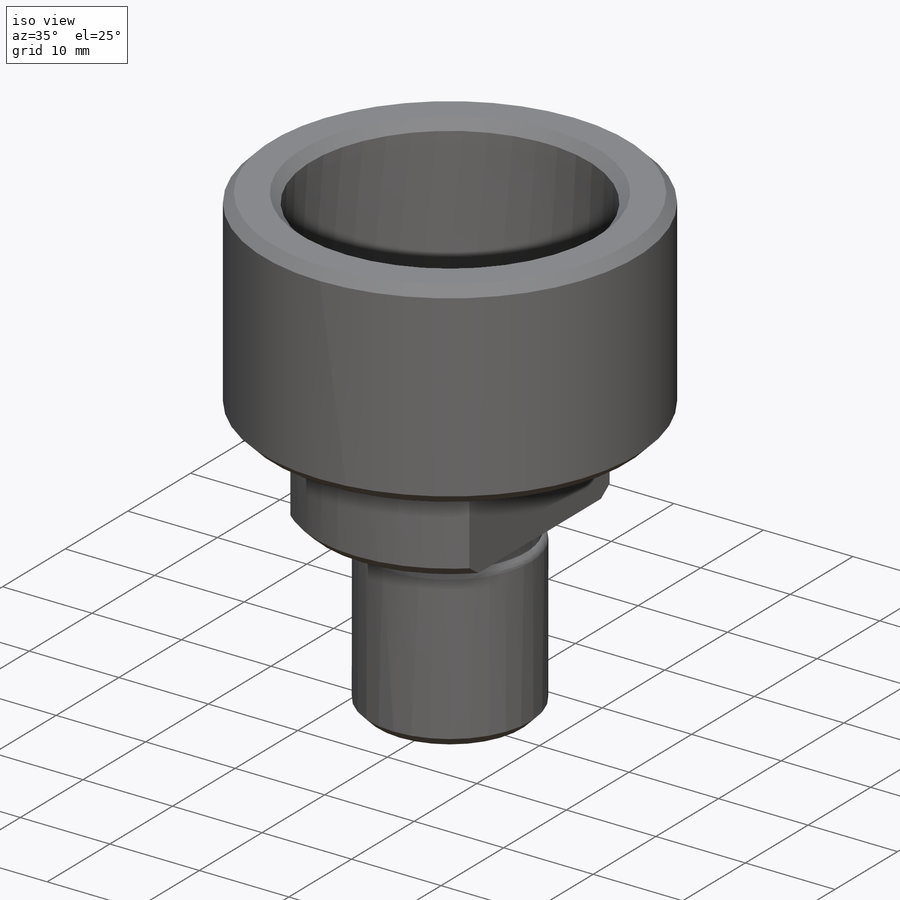
[diagram: iso view]
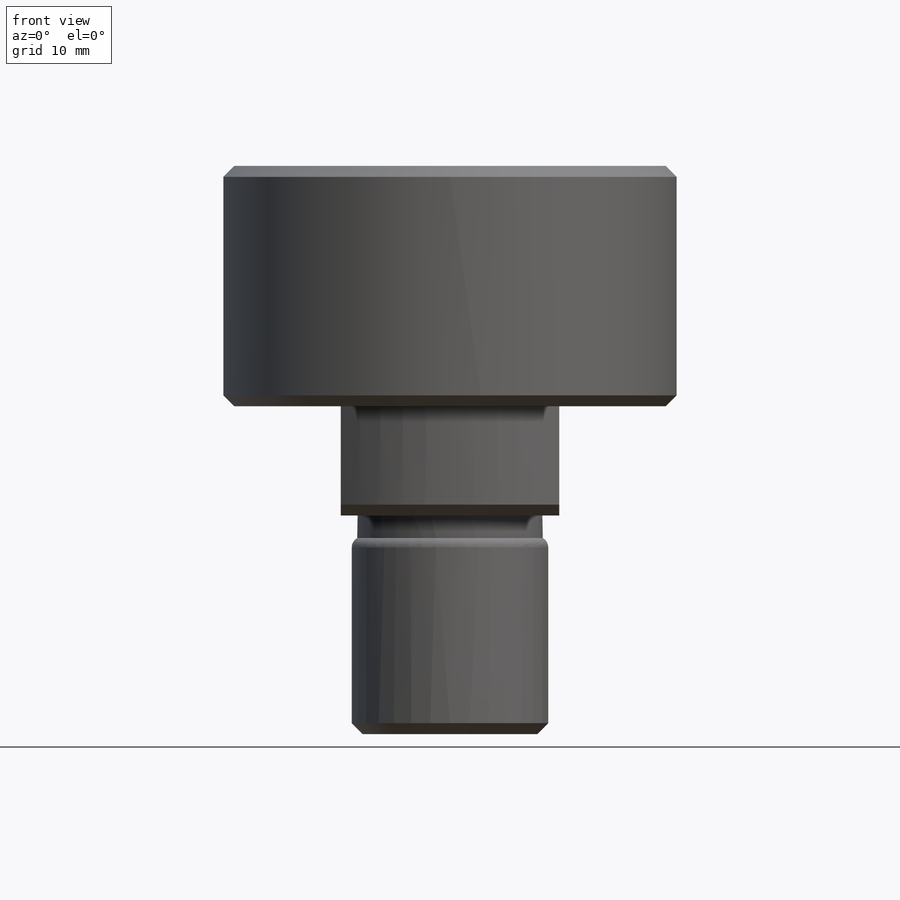
[diagram: front view]
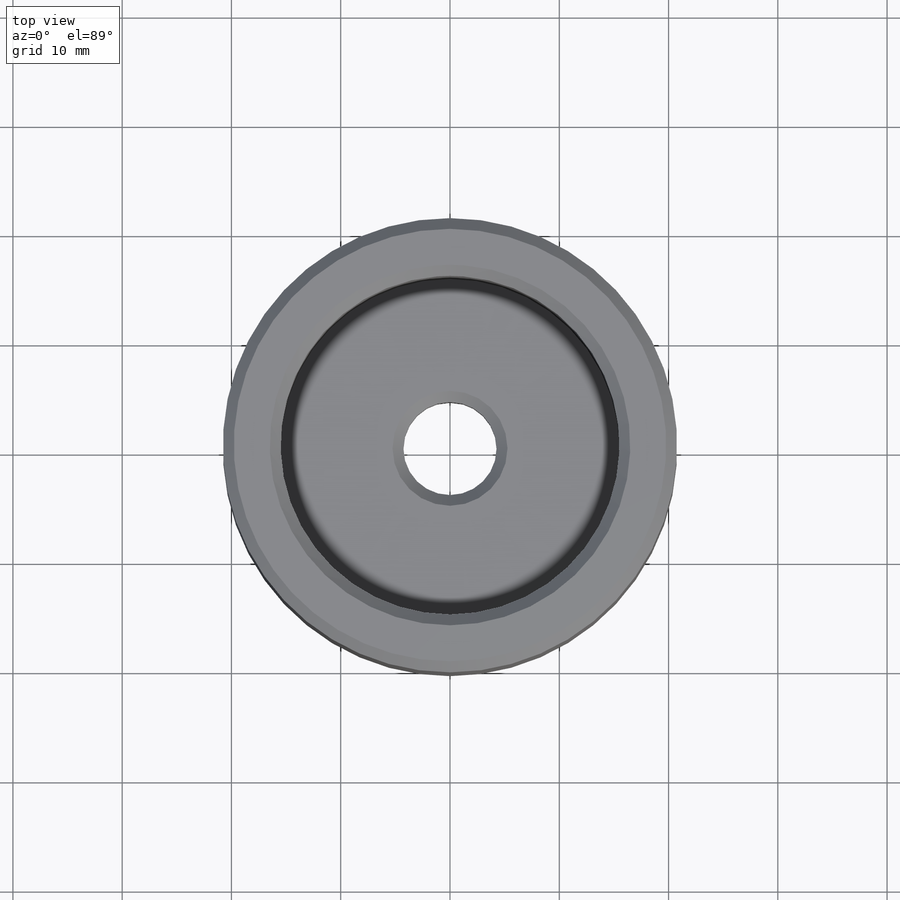
[diagram: top view]
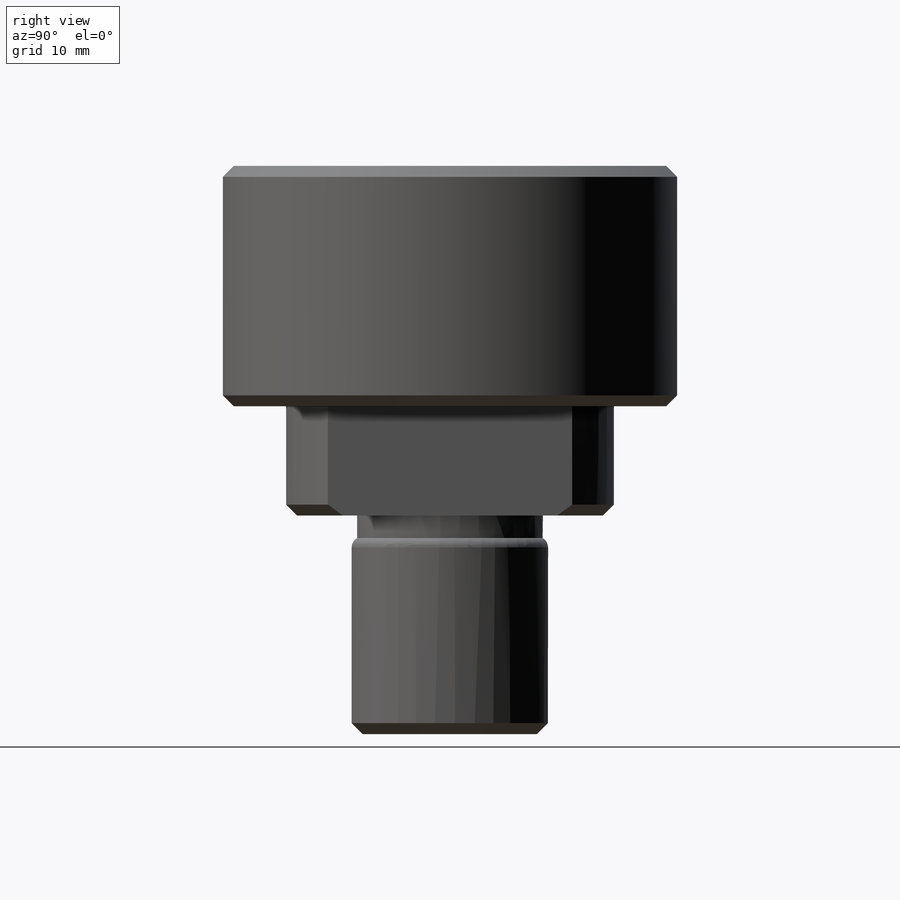
[diagram: right view]
SOLIDWORKS PART (.sldprt)
format: sldprt  version: not decoded by parser v0  size: 368,128 bytes
history: native  units: mm
features: plane x3, sketch x2, fillet x2, material x1, revolve x1, chamfer x1, cut_extrude x1 (+10 scaffold rows collapsed)
feature tree (21):
  scaffold x10  (default folders/planes/origin — collapsed)
  material  "Material <sin especificar>"
  plane  "Alzado"
  plane  "Planta"
  plane  "Vista lateral"
  sketch  "Croquis1"  dims[c1.D1=22.0mm c1.D2=10.0mm c1.D3=16.0mm c1.D4=4.7625mm c1.D5=~6.749356mm c1.D6=15.5mm c1.D7=17.0mm c1.D8=5.0mm c1.D9=~1.12401mm c2.D9=90.0deg c3.D9=0.5mm c3.D3=30.0mm c3.D10=~11.511856mm c3.D5=9.0mm c4.D10=15.0mm c4.D12=8.5mm]
  revolve  "Revolución1"  Angle=360deg
  chamfer  "Chaflán1"  Distance=1mm Angle=45deg
  fillet  "Redondeo1"  Radius=1mm
  fillet  "Chaflán2"  Radius=1mm
  sketch  "Croquis3"  dims[D1=10.0mm D2=10.0mm]
  cut_extrude  "Cortar-Extruir1"  [1 undecoded]
decode coverage: 6 of 7 modeling features carry decoded parameters
note: ~ marks probable driven/reference dimensions
note: 1 parameter value undecoded
note: suppression state not decoded; provenance and decode notes live in map.json
